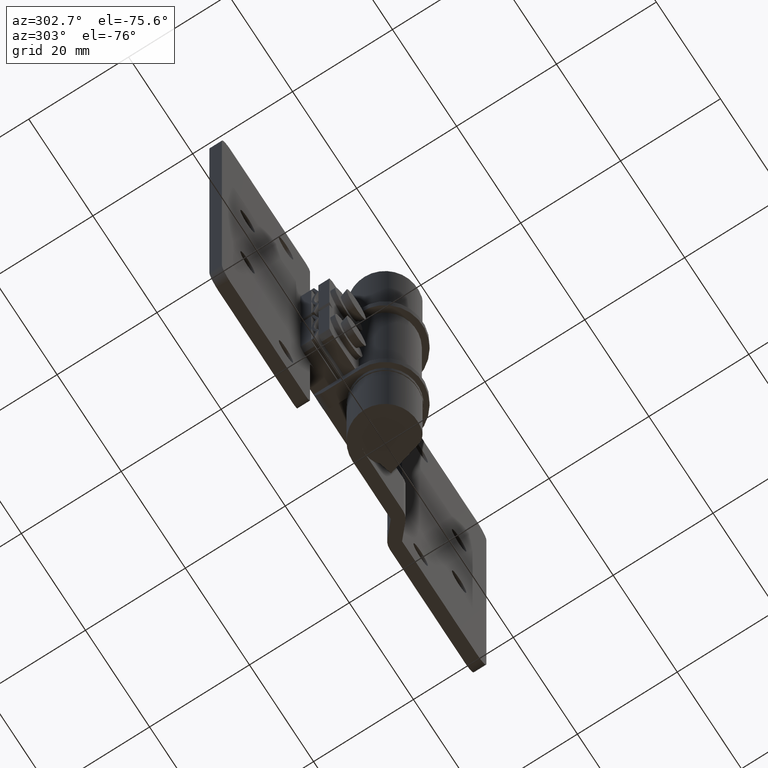
[diagram: clean part render]
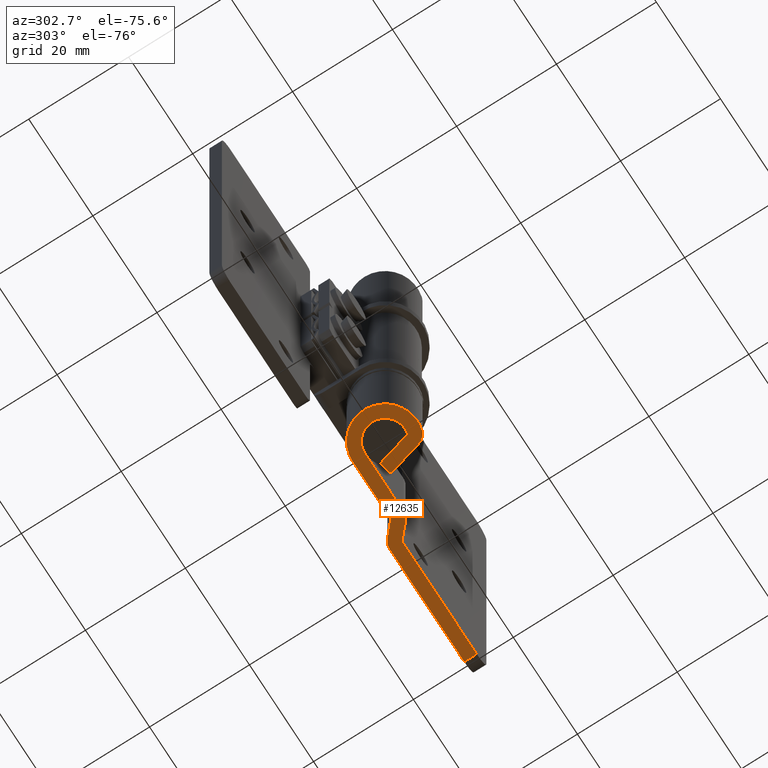
[diagram: same view with one face highlighted and labeled with its STEP entity id]
A machine part, auxiliary view. The second image highlights one B-rep face of the part: STEP entity #12635.
In plain terms, the highlighted face is a freeform B-spline surface patch.
Its self-contained STEP definition (entity closure, byte-faithful):
#11695=CARTESIAN_POINT('',(16.199999999999999,7.0,0.0));
#11696=VERTEX_POINT('',#11695);
#11697=CARTESIAN_POINT('',(39.500000000000000,7.0,0.0));
#11698=VERTEX_POINT('',#11697);
#11699=CARTESIAN_POINT('',(16.199999999999999,7.0,0.0));
#11700=CARTESIAN_POINT('',(39.500000000000000,7.0,0.0));
#11701=QUASI_UNIFORM_CURVE('',1,(#11699,#11700),.UNSPECIFIED.,.F.,.U.);
#11702=EDGE_CURVE('',#11696,#11698,#11701,.T.);
#11851=CARTESIAN_POINT('',(13.591825702712359,4.644609126216690,0.0));
#11852=VERTEX_POINT('',#11851);
#11858=CARTESIAN_POINT('',(13.591825702712359,4.644609126216690,0.0));
#11859=CARTESIAN_POINT('',(16.199999999999999,7.0,0.0));
#11860=QUASI_UNIFORM_CURVE('',1,(#11858,#11859),.UNSPECIFIED.,.F.,.U.);
#11861=EDGE_CURVE('',#11852,#11696,#11860,.T.);
#11922=CARTESIAN_POINT('',(11.916258722409401,4.0,0.0));
#11923=VERTEX_POINT('',#11922);
#11929=CARTESIAN_POINT('',(13.591825702712370,4.644609126216686,0.0));
#11930=CARTESIAN_POINT('',(12.878036338276676,4.0,0.0));
#11931=CARTESIAN_POINT('',(11.916258722409401,4.0,0.0));
#11939=(BOUNDED_CURVE()B_SPLINE_CURVE(2,(#11929,#11930,#11931),.UNSPECIFIED.,.F.,.U.)CURVE()GEOMETRIC_REPRESENTATION_ITEM()QUASI_UNIFORM_CURVE()RATIONAL_B_SPLINE_CURVE((1.0,0.933315688690950,1.0))REPRESENTATION_ITEM(''));
#11940=EDGE_CURVE('',#11852,#11923,#11939,.T.);
#12465=CARTESIAN_POINT('',(39.500000000000000,9.500000000000000,0.0));
#12466=VERTEX_POINT('',#12465);
#12467=CARTESIAN_POINT('',(39.500000000000000,9.500000000000000,0.0));
#12468=CARTESIAN_POINT('',(39.500000000000000,7.0,0.0));
#12469=QUASI_UNIFORM_CURVE('',1,(#12467,#12468),.UNSPECIFIED.,.F.,.U.);
#12470=EDGE_CURVE('',#12466,#11698,#12469,.T.);
#12495=CARTESIAN_POINT('',(-8.796660844275110,-7.295041797968342,0.0));
#12496=CARTESIAN_POINT('',(41.797651712299121,-7.295041797968342,0.0));
#12497=CARTESIAN_POINT('',(-8.796660844275110,10.299002578086240,0.0));
#12498=CARTESIAN_POINT('',(41.797651712299121,10.299002578086240,0.0));
#12499=B_SPLINE_SURFACE_WITH_KNOTS('',1,1,((#12495,#12497),(#12496,#12498)),.UNSPECIFIED.,.F.,.F.,.U.,(2,2),(2,2),(0.0,50.594312556574231),(0.0,17.594044376054580),.UNSPECIFIED.);
#12500=CARTESIAN_POINT('',(16.199999999999999,9.500000000000000,0.0));
#12501=VERTEX_POINT('',#12500);
#12502=CARTESIAN_POINT('',(39.500000000000000,9.500000000000000,0.0));
#12503=CARTESIAN_POINT('',(16.199999999999999,9.500000000000000,0.0));
#12504=QUASI_UNIFORM_CURVE('',1,(#12502,#12503),.UNSPECIFIED.,.F.,.U.);
#12505=EDGE_CURVE('',#12466,#12501,#12504,.T.);
#12506=ORIENTED_EDGE('',*,*,#12505,.F.);
#12507=ORIENTED_EDGE('',*,*,#12470,.T.);
#12508=ORIENTED_EDGE('',*,*,#11702,.F.);
#12509=ORIENTED_EDGE('',*,*,#11861,.F.);
#12510=ORIENTED_EDGE('',*,*,#11940,.T.);
#12511=CARTESIAN_POINT('',(-3.133736E-013,3.999999999999955,0.0));
#12512=VERTEX_POINT('',#12511);
#12513=CARTESIAN_POINT('',(-3.133736E-013,3.999999999999955,0.0));
#12514=CARTESIAN_POINT('',(11.916258722409401,4.0,0.0));
#12515=QUASI_UNIFORM_CURVE('',1,(#12513,#12514),.UNSPECIFIED.,.F.,.U.);
#12516=EDGE_CURVE('',#12512,#11923,#12515,.T.);
#12517=ORIENTED_EDGE('',*,*,#12516,.F.);
#12518=CARTESIAN_POINT('',(1.035276180409794,-3.863703305156235,0.0));
#12519=VERTEX_POINT('',#12518);
#12520=CARTESIAN_POINT('',(1.035276180409794,-3.863703305156235,0.0));
#12521=CARTESIAN_POINT('',(0.675729805211845,-3.960183744489910,0.0));
#12522=CARTESIAN_POINT('',(0.089469641842365,-4.031942355057178,0.0));
#12523=CARTESIAN_POINT('',(-0.795492311363478,-3.945721150023626,0.0));
#12524=CARTESIAN_POINT('',(-1.496371207799810,-3.736615197776832,0.0));
#12525=CARTESIAN_POINT('',(-2.142144323392702,-3.398159376644643,0.0));
#12526=CARTESIAN_POINT('',(-2.726001727827835,-2.961490022115107,0.0));
#12527=CARTESIAN_POINT('',(-3.216900148082261,-2.419303455688294,0.0));
#12528=CARTESIAN_POINT('',(-3.584411963834040,-1.810304391049904,0.0));
#12529=CARTESIAN_POINT('',(-3.820974932055988,-1.234979538423738,0.0));
#12530=CARTESIAN_POINT('',(-4.009241570601325,-0.457182031350464,0.0));
#12531=CARTESIAN_POINT('',(-4.018303020407454,0.348972718829466,0.0));
#12532=CARTESIAN_POINT('',(-3.852874971207997,1.131500035639410,0.0));
#12533=CARTESIAN_POINT('',(-3.589179039119324,1.830250800454633,0.0));
#12534=CARTESIAN_POINT('',(-3.090188805198167,2.614010544029843,0.0));
#12535=CARTESIAN_POINT('',(-2.348471569791394,3.288269335682809,0.0));
#12536=CARTESIAN_POINT('',(-1.547035013165295,3.717594174578454,0.0));
#12537=CARTESIAN_POINT('',(-0.779919118435950,3.948559518049657,0.0));
#12538=CARTESIAN_POINT('',(-0.265880593417082,4.000034776030443,0.0));
#12539=CARTESIAN_POINT('',(-3.133736E-013,3.999999999999955,0.0));
#12540=B_SPLINE_CURVE_WITH_KNOTS('',3,(#12520,#12521,#12522,#12523,#12524,#12525,#12526,#12527,#12528,#12529,#12530,#12531,#12532,#12533,#12534,#12535,#12536,#12537,#12538,#12539),.UNSPECIFIED.,.F.,.U.,(4,1,1,1,1,1,1,1,1,1,1,1,1,1,1,1,1,4),(0.000000312306483,1.116745228323707,1.754884795465546,2.658924894730665,3.297063952527209,3.935218519899738,4.839227090791562,5.477364113573113,6.062320737063776,6.700477748212538,7.870414494263777,8.455398226536921,9.093470002177282,10.103864875893050,11.220638106344669,12.071500375475379,12.816028516652141,13.613668413802170),.UNSPECIFIED.);
#12541=EDGE_CURVE('',#12519,#12512,#12540,.T.);
#12542=ORIENTED_EDGE('',*,*,#12541,.F.);
#12543=CARTESIAN_POINT('',(2.828427124745500,2.828427124746190,0.0));
#12544=VERTEX_POINT('',#12543);
#12545=CARTESIAN_POINT('',(2.828427124745500,2.828427124746190,0.0));
#12546=CARTESIAN_POINT('',(1.035276180409794,-3.863703305156235,0.0));
#12547=QUASI_UNIFORM_CURVE('',1,(#12545,#12546),.UNSPECIFIED.,.F.,.U.);
#12548=EDGE_CURVE('',#12544,#12519,#12547,.T.);
#12549=ORIENTED_EDGE('',*,*,#12548,.F.);
#12550=CARTESIAN_POINT('',(5.243241690468611,2.181379511989860,0.0));
#12551=VERTEX_POINT('',#12550);
#12552=CARTESIAN_POINT('',(5.243241690468611,2.181379511989860,0.0));
#12553=CARTESIAN_POINT('',(2.828427124745500,2.828427124746190,0.0));
#12554=QUASI_UNIFORM_CURVE('',1,(#12552,#12553),.UNSPECIFIED.,.F.,.U.);
#12555=EDGE_CURVE('',#12551,#12544,#12554,.T.);
#12556=ORIENTED_EDGE('',*,*,#12555,.F.);
#12557=CARTESIAN_POINT('',(3.450090746132385,-4.510750917912570,0.0));
#12558=VERTEX_POINT('',#12557);
#12559=CARTESIAN_POINT('',(3.450090746132385,-4.510750917912570,0.0));
#12560=CARTESIAN_POINT('',(5.243241690468611,2.181379511989860,0.0));
#12561=QUASI_UNIFORM_CURVE('',1,(#12559,#12560),.UNSPECIFIED.,.F.,.U.);
#12562=EDGE_CURVE('',#12558,#12551,#12561,.T.);
#12563=ORIENTED_EDGE('',*,*,#12562,.F.);
#12564=CARTESIAN_POINT('',(1.682323793165840,-6.278517870879040,0.0));
#12565=VERTEX_POINT('',#12564);
#12566=CARTESIAN_POINT('',(3.450090746132386,-4.510750917912569,0.0));
#12567=CARTESIAN_POINT('',(3.076517632729005,-5.904944757475718,0.0));
#12568=CARTESIAN_POINT('',(1.682323793165831,-6.278517870879004,0.0));
#12576=(BOUNDED_CURVE()B_SPLINE_CURVE(2,(#12566,#12567,#12568),.UNSPECIFIED.,.F.,.U.)CURVE()GEOMETRIC_REPRESENTATION_ITEM()QUASI_UNIFORM_CURVE()RATIONAL_B_SPLINE_CURVE((1.0,0.866025403784418,1.0))REPRESENTATION_ITEM(''));
#12577=EDGE_CURVE('',#12558,#12565,#12576,.T.);
#12578=ORIENTED_EDGE('',*,*,#12577,.T.);
#12579=CARTESIAN_POINT('',(-3.979039E-013,6.500000000000000,0.0));
#12580=VERTEX_POINT('',#12579);
#12581=CARTESIAN_POINT('',(1.682323793165840,-6.278517870879040,0.0));
#12582=CARTESIAN_POINT('',(1.320629129414637,-6.375460190108123,0.0));
#12583=CARTESIAN_POINT('',(0.580431897211502,-6.506594444416892,0.0));
#12584=CARTESIAN_POINT('',(-0.402582942204729,-6.509112567605979,0.0));
#12585=CARTESIAN_POINT('',(-1.374142270417466,-6.375114944166907,0.0));
#12586=CARTESIAN_POINT('',(-2.403248337885715,-6.082999861570298,0.0));
#12587=CARTESIAN_POINT('',(-3.669265336716266,-5.441035739253092,0.0));
#12588=CARTESIAN_POINT('',(-4.794426310334005,-4.476429430881027,0.0));
#12589=CARTESIAN_POINT('',(-5.544118195484161,-3.446704038076780,0.0));
#12590=CARTESIAN_POINT('',(-6.119170297129139,-2.314696425615366,0.0));
#12591=CARTESIAN_POINT('',(-6.476987106237401,-1.056911215750941,0.0));
#12592=CARTESIAN_POINT('',(-6.528312570615646,0.303657222753587,0.0));
#12593=CARTESIAN_POINT('',(-6.357073443453460,1.504570984019109,0.0));
#12594=CARTESIAN_POINT('',(-6.007892390027770,2.578190713142661,0.0));
#12595=CARTESIAN_POINT('',(-5.508297343245446,3.491284957081526,0.0));
#12596=CARTESIAN_POINT('',(-4.939697453264631,4.254689430329547,0.0));
#12597=CARTESIAN_POINT('',(-4.374644434880670,4.833788046104711,0.0));
#12598=CARTESIAN_POINT('',(-3.648101339050458,5.403153197740219,0.0));
#12599=CARTESIAN_POINT('',(-2.676813896194925,5.974755948916021,0.0));
#12600=CARTESIAN_POINT('',(-1.411443409410906,6.402105925518039,0.0));
#12601=CARTESIAN_POINT('',(-0.432058495452619,6.500030130802823,0.0));
#12602=CARTESIAN_POINT('',(-3.979039E-013,6.500000000000000,0.0));
#12603=B_SPLINE_CURVE_WITH_KNOTS('',3,(#12581,#12582,#12583,#12584,#12585,#12586,#12587,#12588,#12589,#12590,#12591,#12592,#12593,#12594,#12595,#12596,#12597,#12598,#12599,#12600,#12601,#12602),.UNSPECIFIED.,.F.,.U.,(4,1,1,1,1,1,1,1,1,1,1,1,1,1,1,1,1,1,1,4),(0.000000151089065,1.123386770800405,2.246786879426093,2.938097512535894,4.061505650612524,5.444160812559257,7.172456793204789,8.468634591930165,9.246382503793297,10.974689327856360,12.357331812253941,13.307925025184240,14.604165988517810,15.727503648119910,16.418818643957248,17.455804036864539,18.147122360213430,19.184114743982182,20.826012057540431,22.122211172379352),.UNSPECIFIED.);
#12604=EDGE_CURVE('',#12565,#12580,#12603,.T.);
#12605=ORIENTED_EDGE('',*,*,#12604,.T.);
#12606=CARTESIAN_POINT('',(11.916258722409500,6.500000000000000,0.0));
#12607=VERTEX_POINT('',#12606);
#12608=CARTESIAN_POINT('',(11.916258722409500,6.500000000000000,0.0));
#12609=CARTESIAN_POINT('',(-3.979039E-013,6.500000000000000,0.0));
#12610=QUASI_UNIFORM_CURVE('',1,(#12608,#12609),.UNSPECIFIED.,.F.,.U.);
#12611=EDGE_CURVE('',#12607,#12580,#12610,.T.);
#12612=ORIENTED_EDGE('',*,*,#12611,.F.);
#12613=CARTESIAN_POINT('',(14.524433019697080,8.855390873783261,0.0));
#12614=VERTEX_POINT('',#12613);
#12615=CARTESIAN_POINT('',(14.524433019697080,8.855390873783261,0.0));
#12616=CARTESIAN_POINT('',(11.916258722409500,6.500000000000000,0.0));
#12617=QUASI_UNIFORM_CURVE('',1,(#12615,#12616),.UNSPECIFIED.,.F.,.U.);
#12618=EDGE_CURVE('',#12614,#12607,#12617,.T.);
#12619=ORIENTED_EDGE('',*,*,#12618,.F.);
#12620=CARTESIAN_POINT('',(14.524433019697080,8.855390873783261,0.0));
#12621=CARTESIAN_POINT('',(15.238222384132719,9.500000000000000,0.0));
#12622=CARTESIAN_POINT('',(16.199999999999999,9.500000000000000,0.0));
#12630=(BOUNDED_CURVE()B_SPLINE_CURVE(2,(#12620,#12621,#12622),.UNSPECIFIED.,.F.,.U.)CURVE()GEOMETRIC_REPRESENTATION_ITEM()QUASI_UNIFORM_CURVE()RATIONAL_B_SPLINE_CURVE((1.0,0.933315688690950,1.0))REPRESENTATION_ITEM(''));
#12631=EDGE_CURVE('',#12614,#12501,#12630,.T.);
#12632=ORIENTED_EDGE('',*,*,#12631,.T.);
#12633=EDGE_LOOP('',(#12506,#12507,#12508,#12509,#12510,#12517,#12542,#12549,#12556,#12563,#12578,#12605,#12612,#12619,#12632));
#12634=FACE_OUTER_BOUND('',#12633,.T.);
#12635=ADVANCED_FACE('',(#12634),#12499,.F.);